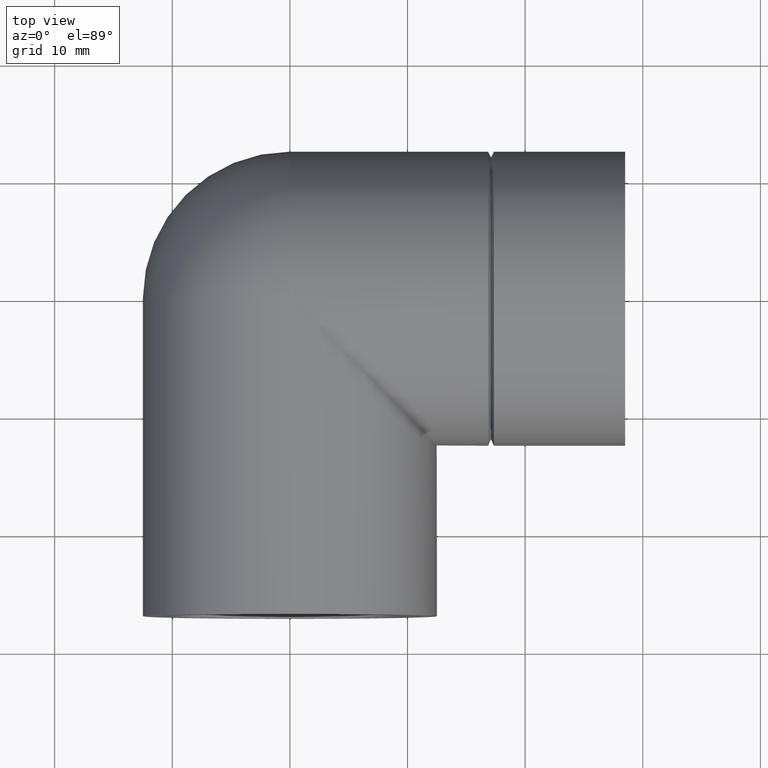
[diagram: clean part render]
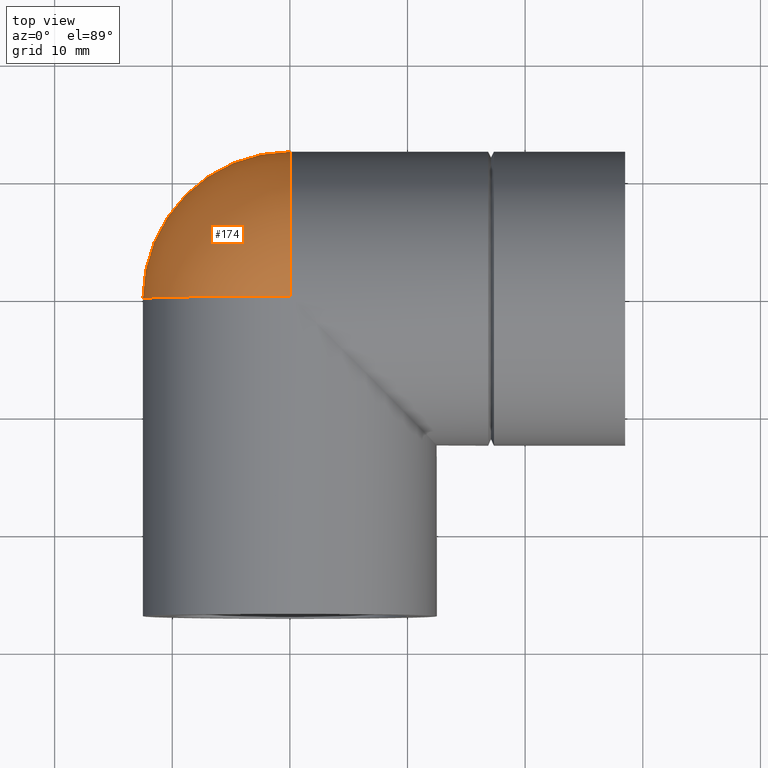
[diagram: same view with one face highlighted and labeled with its STEP entity id]
A machine part, top view. The second image highlights one B-rep face of the part: STEP entity #174.
In plain terms, the highlighted spherical surface has radius 12.5 mm.
Its self-contained STEP definition (entity closure, byte-faithful):
#18=SPHERICAL_SURFACE('',#199,12.5);
#45=FACE_OUTER_BOUND('',#67,.T.);
#67=EDGE_LOOP('',(#142,#143));
#90=CIRCLE('',#200,12.5);
#91=CIRCLE('',#201,12.5);
#105=VERTEX_POINT('',#304);
#106=VERTEX_POINT('',#305);
#120=EDGE_CURVE('',#105,#106,#90,.T.);
#121=EDGE_CURVE('',#105,#106,#91,.T.);
#142=ORIENTED_EDGE('',*,*,#120,.F.);
#143=ORIENTED_EDGE('',*,*,#121,.T.);
#174=ADVANCED_FACE('',(#45),#18,.T.);
#199=AXIS2_PLACEMENT_3D('',#303,#247,#248);
#200=AXIS2_PLACEMENT_3D('',#306,#249,#250);
#201=AXIS2_PLACEMENT_3D('',#307,#251,#252);
#247=DIRECTION('center_axis',(6.12323399573677E-17,0.,1.));
#248=DIRECTION('ref_axis',(1.,0.,0.));
#249=DIRECTION('center_axis',(1.,0.,0.));
#250=DIRECTION('ref_axis',(0.,0.,-1.));
#251=DIRECTION('center_axis',(-1.22464679914735E-16,1.,0.));
#252=DIRECTION('ref_axis',(1.,1.22464679914735E-16,0.));
#303=CARTESIAN_POINT('Origin',(0.,0.,0.));
#304=CARTESIAN_POINT('',(0.,-9.37349864163661E-32,-12.5));
#305=CARTESIAN_POINT('',(0.,-9.37349864163661E-32,12.5));
#306=CARTESIAN_POINT('Origin',(0.,0.,0.));
#307=CARTESIAN_POINT('Origin',(0.,0.,0.));